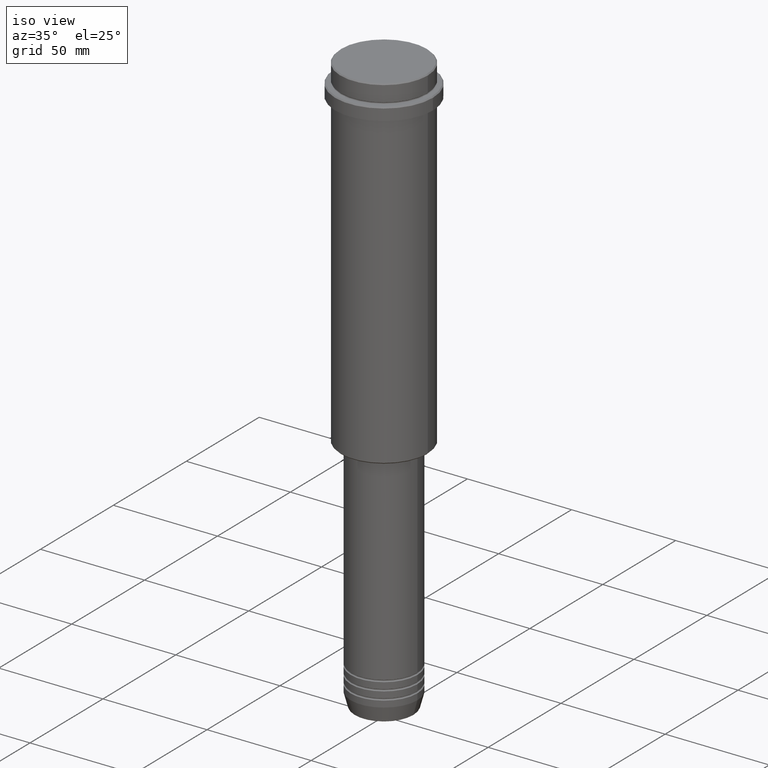
[diagram: clean part render]
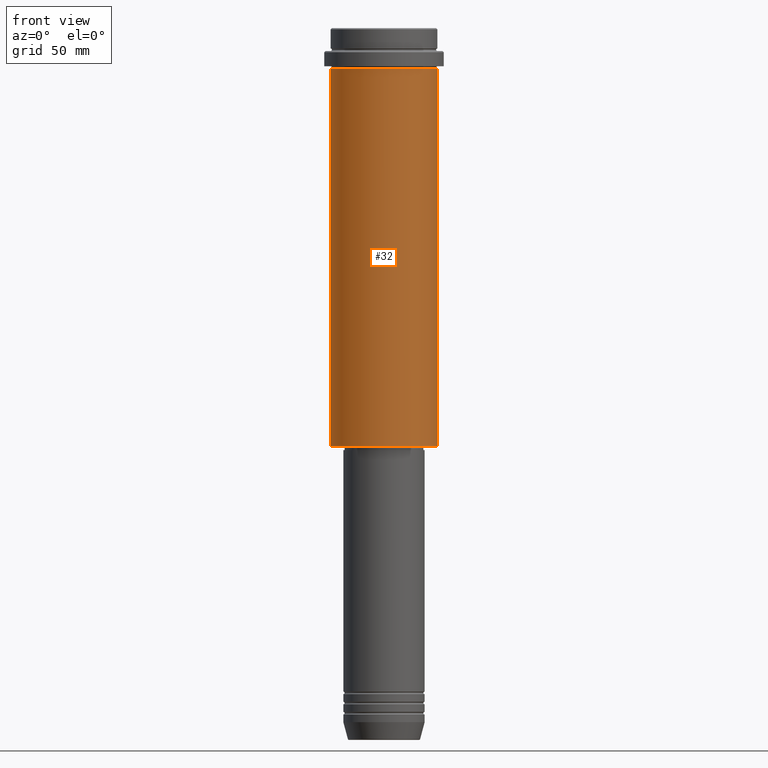
[diagram: tour spotlight — one face highlighted and labeled with its STEP entity id]
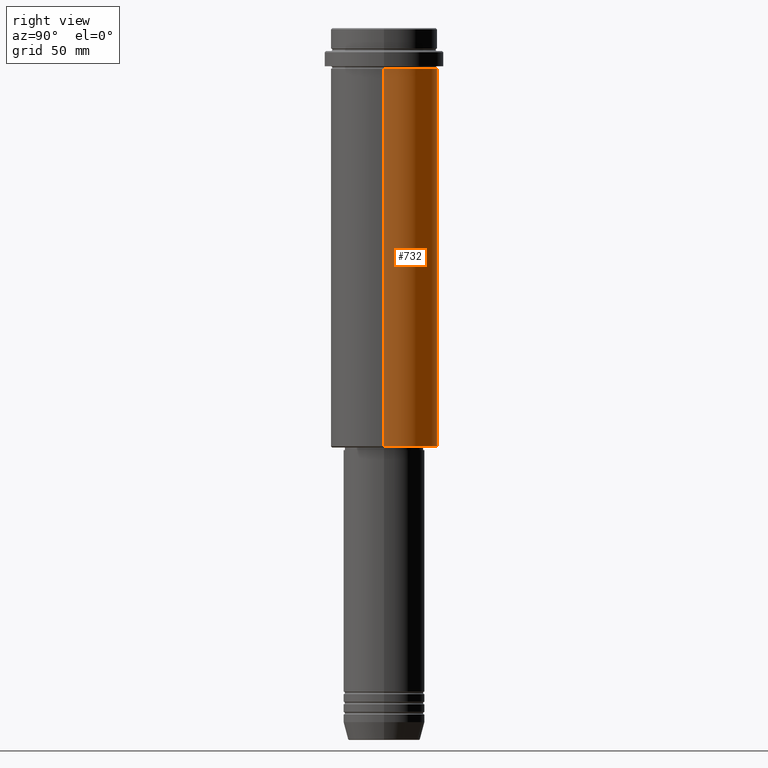
[diagram: tour spotlight — one face highlighted and labeled with its STEP entity id]
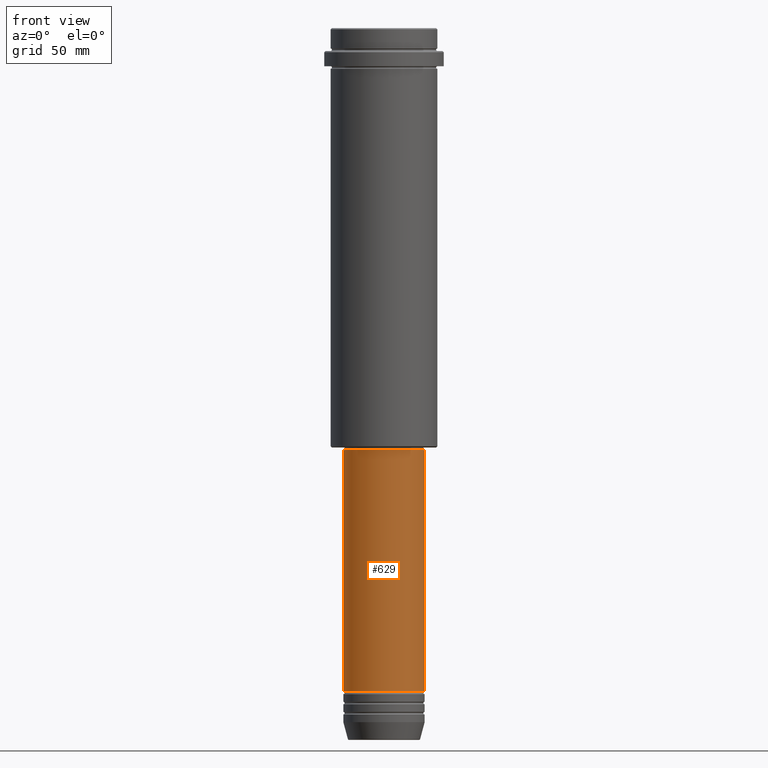
[diagram: tour spotlight — one face highlighted and labeled with its STEP entity id]
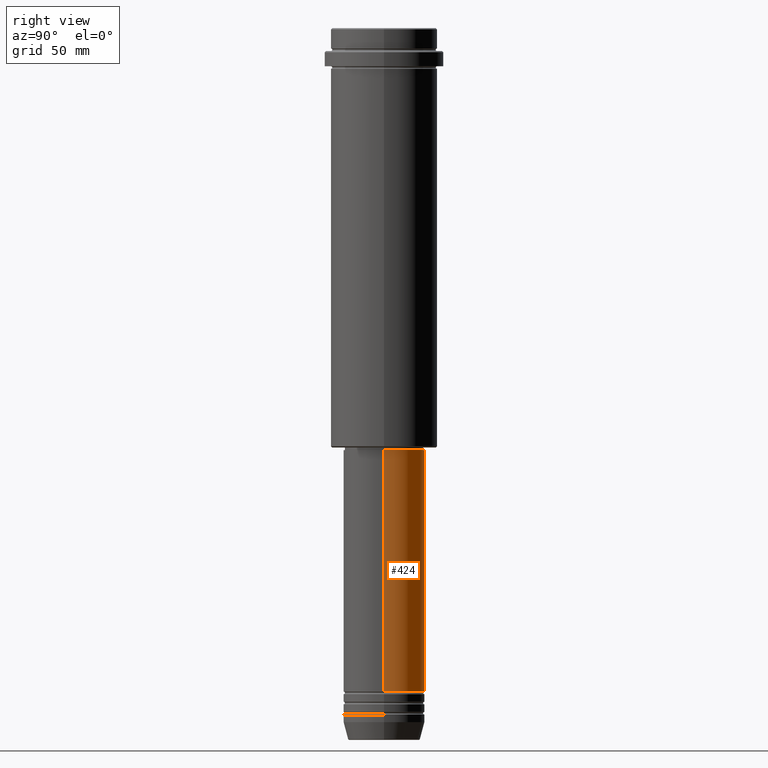
[diagram: tour spotlight — one face highlighted and labeled with its STEP entity id]
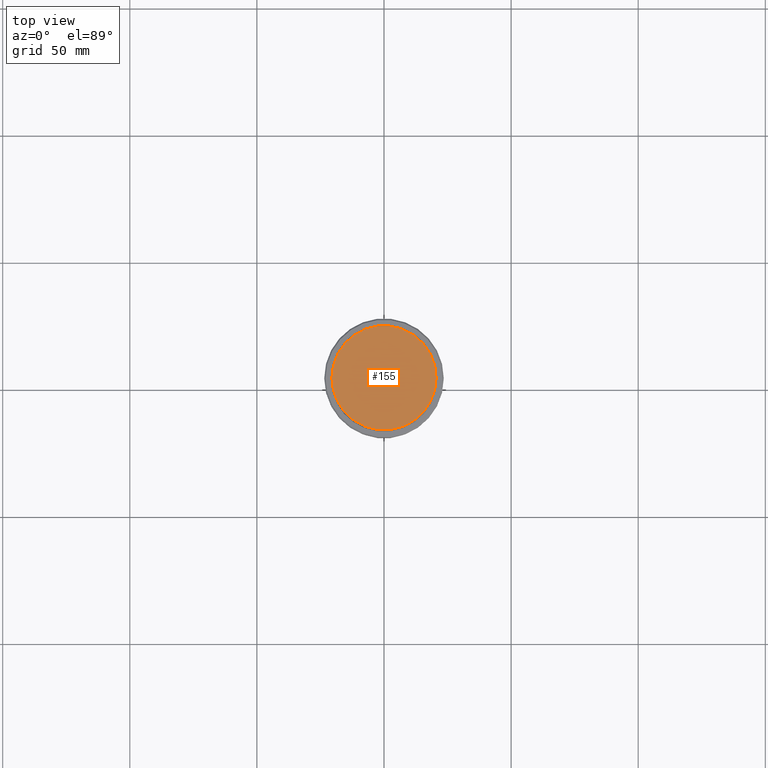
[diagram: tour spotlight — one face highlighted and labeled with its STEP entity id]
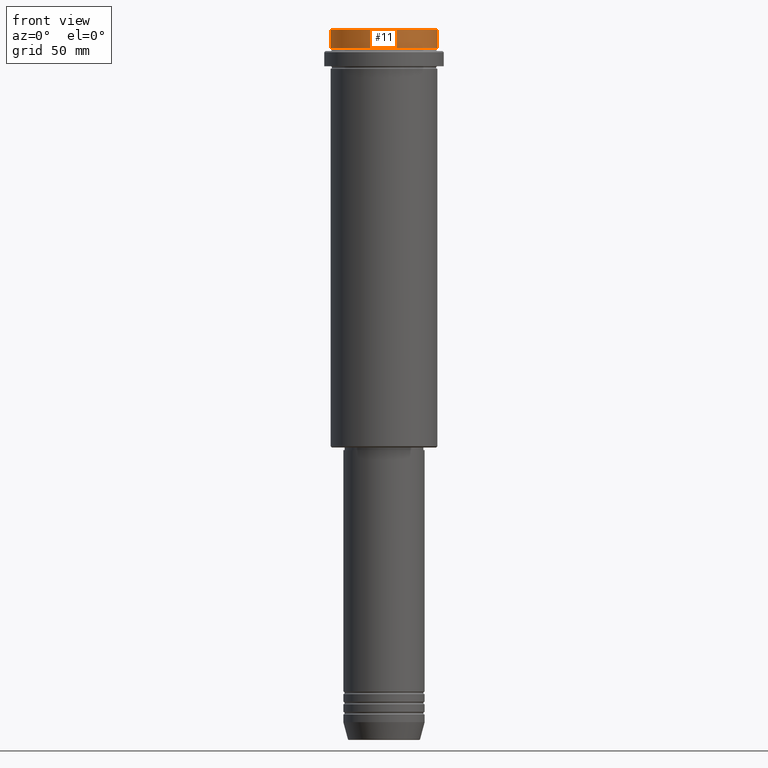
[diagram: tour spotlight — one face highlighted and labeled with its STEP entity id]
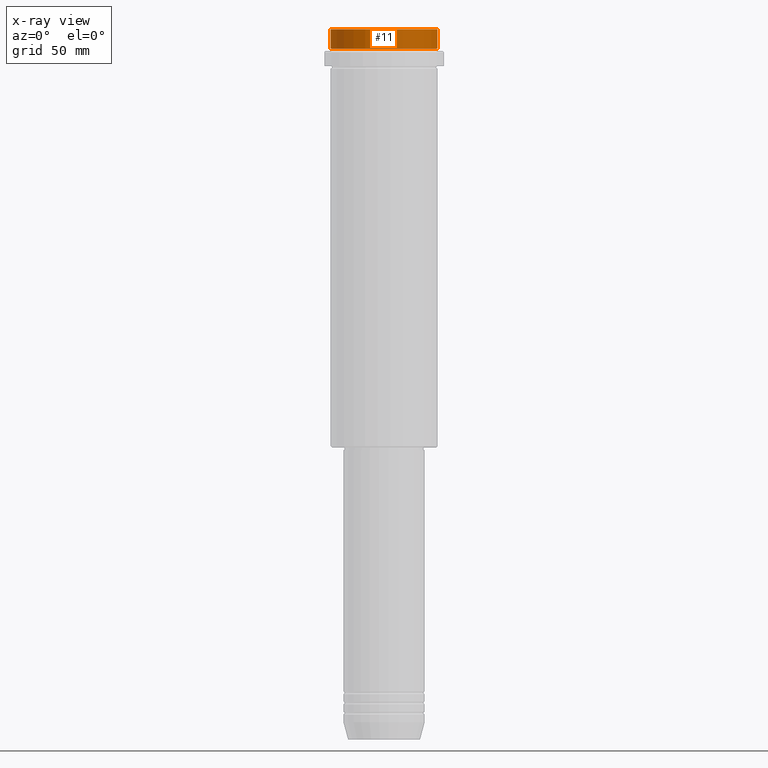
[diagram: x-ray of the same camera — body ghosted, this tour face saturated]
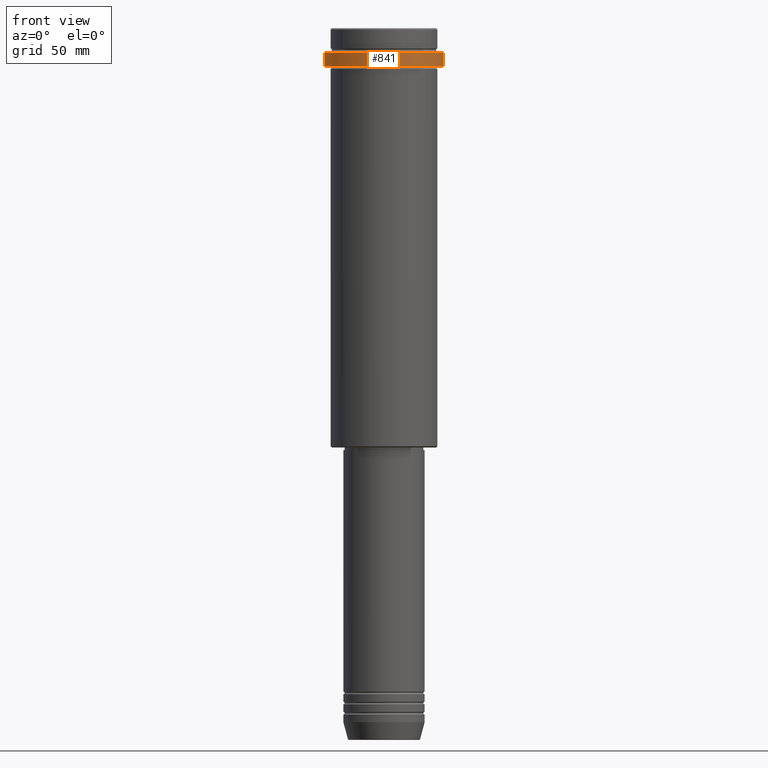
[diagram: tour spotlight — one face highlighted and labeled with its STEP entity id]
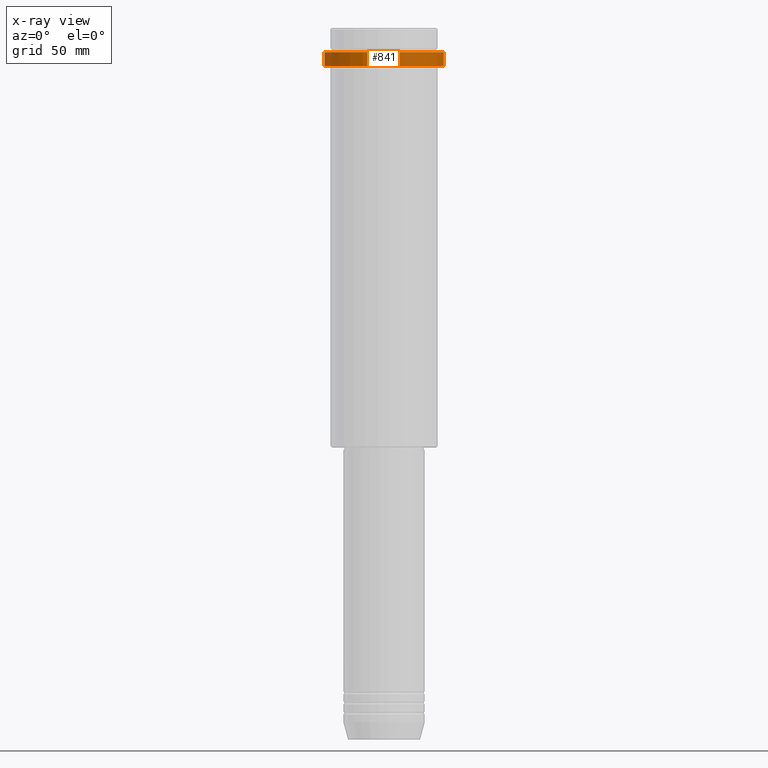
[diagram: x-ray of the same camera — body ghosted, this tour face saturated]
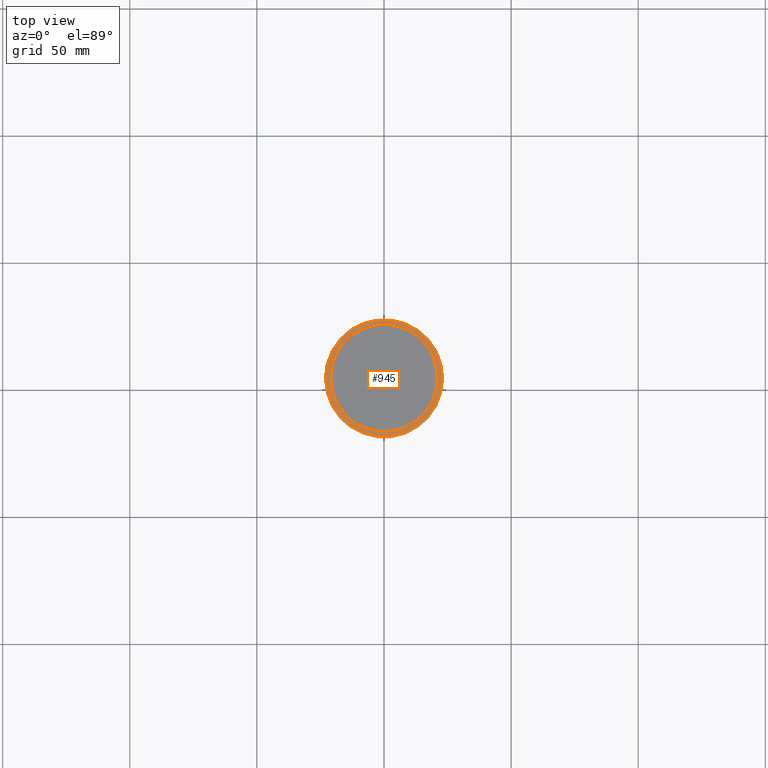
[diagram: tour spotlight — one face highlighted and labeled with its STEP entity id]
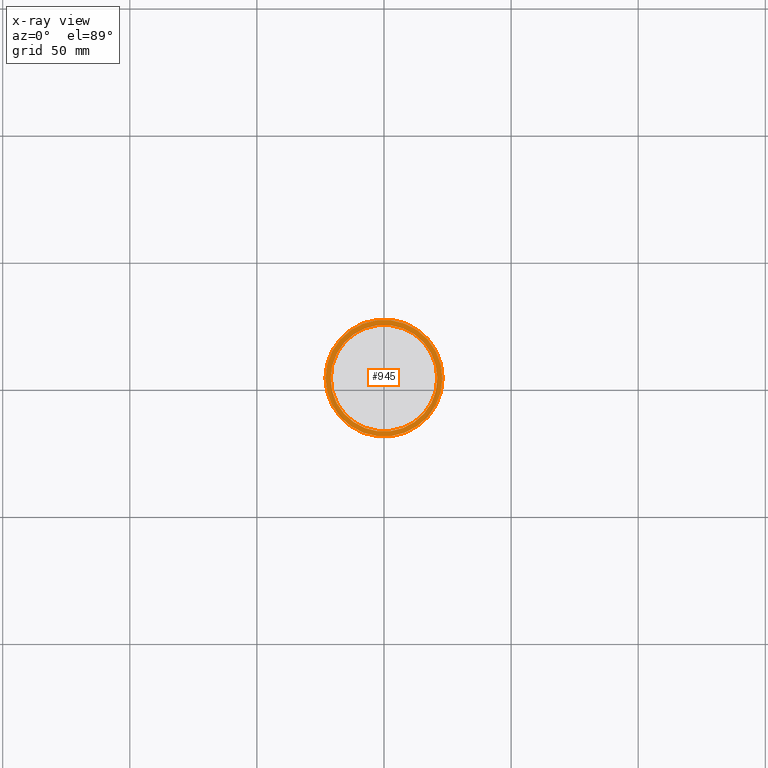
[diagram: x-ray of the same camera — body ghosted, this tour face saturated]
A machine part: a face-by-face anatomy tour. The part has 52 B-rep faces; the first image is the clean iso view, then the 8 largest visible faces are spotlighted one at a time (largest first), each with its STEP entity span.

Face 1 — front view, entity #32. In plain terms, the highlighted cylindrical surface (partial cylindrical patch) has radius 21 mm, axis along (-0, -0, 1).
Definition (entity closure, byte-faithful):
#2 = DIRECTION ( 'NONE',  ( -1.000000000000000000, 0.000000000000000000, 0.000000000000000000 ) ) ;
#26 = CARTESIAN_POINT ( 'NONE',  ( 0.000000000000000000, 0.000000000000000000, 0.000000000000000000 ) ) ;
#31 = DIRECTION ( 'NONE',  ( 1.000000000000000000, 0.000000000000000000, 0.000000000000000000 ) ) ;
#32 = ADVANCED_FACE ( 'NONE', ( #690 ), #372, .T. ) ;
#132 = VERTEX_POINT ( 'NONE', #459 ) ;
#152 = DIRECTION ( 'NONE',  ( -0.000000000000000000, -0.000000000000000000, 1.000000000000000000 ) ) ;
#175 = LINE ( 'NONE', #672, #1008 ) ;
#188 = CARTESIAN_POINT ( 'NONE',  ( 21.00000000000000000, 0.000000000000000000, -16.00000000000000355 ) ) ;
#222 = CARTESIAN_POINT ( 'NONE',  ( 0.000000000000000000, 0.000000000000000000, -164.5000000000000000 ) ) ;
#262 = ORIENTED_EDGE ( 'NONE', *, *, #522, .F. ) ;
#277 = CARTESIAN_POINT ( 'NONE',  ( -21.00000000000000000, 2.571758278209441661E-15, 0.000000000000000000 ) ) ;
#372 = CYLINDRICAL_SURFACE ( 'NONE', #958, 21.00000000000000000 ) ;
#390 = VERTEX_POINT ( 'NONE', #188 ) ;
#397 = ORIENTED_EDGE ( 'NONE', *, *, #550, .T. ) ;
#459 = CARTESIAN_POINT ( 'NONE',  ( -21.00000000000000000, 2.571758278209441661E-15, -16.00000000000000355 ) ) ;
#522 = EDGE_CURVE ( 'NONE', #860, #132, #1372, .T. ) ;
#534 = VECTOR ( 'NONE', #895, 1000.000000000000000 ) ;
#550 = EDGE_CURVE ( 'NONE', #750, #390, #175, .T. ) ;
#642 = CARTESIAN_POINT ( 'NONE',  ( 21.00000000000000000, 0.000000000000000000, -164.5000000000000000 ) ) ;
#672 = CARTESIAN_POINT ( 'NONE',  ( 21.00000000000000000, 0.000000000000000000, 0.000000000000000000 ) ) ;
#690 = FACE_OUTER_BOUND ( 'NONE', #1298, .T. ) ;
#712 = EDGE_CURVE ( 'NONE', #860, #750, #1167, .T. ) ;
#738 = DIRECTION ( 'NONE',  ( 1.000000000000000000, 0.000000000000000000, 0.000000000000000000 ) ) ;
#750 = VERTEX_POINT ( 'NONE', #642 ) ;
#789 = CARTESIAN_POINT ( 'NONE',  ( -21.00000000000000000, 2.571758278209441661E-15, -164.5000000000000000 ) ) ;
#860 = VERTEX_POINT ( 'NONE', #789 ) ;
#895 = DIRECTION ( 'NONE',  ( -0.000000000000000000, -0.000000000000000000, 1.000000000000000000 ) ) ;
#924 = AXIS2_PLACEMENT_3D ( 'NONE', #222, #970, #2 ) ;
#958 = AXIS2_PLACEMENT_3D ( 'NONE', #26, #1238, #738 ) ;
#970 = DIRECTION ( 'NONE',  ( -0.000000000000000000, -0.000000000000000000, 1.000000000000000000 ) ) ;
#1008 = VECTOR ( 'NONE', #1378, 1000.000000000000000 ) ;
#1054 = CIRCLE ( 'NONE', #1290, 21.00000000000000000 ) ;
#1118 = ORIENTED_EDGE ( 'NONE', *, *, #712, .T. ) ;
#1167 = CIRCLE ( 'NONE', #924, 21.00000000000000000 ) ;
#1179 = ORIENTED_EDGE ( 'NONE', *, *, #1370, .F. ) ;
#1203 = CARTESIAN_POINT ( 'NONE',  ( 0.000000000000000000, 0.000000000000000000, -16.00000000000000355 ) ) ;
#1238 = DIRECTION ( 'NONE',  ( -0.000000000000000000, -0.000000000000000000, 1.000000000000000000 ) ) ;
#1290 = AXIS2_PLACEMENT_3D ( 'NONE', #1203, #152, #31 ) ;
#1298 = EDGE_LOOP ( 'NONE', ( #262, #1118, #397, #1179 ) ) ;
#1370 = EDGE_CURVE ( 'NONE', #132, #390, #1054, .T. ) ;
#1372 = LINE ( 'NONE', #277, #534 ) ;
#1378 = DIRECTION ( 'NONE',  ( -0.000000000000000000, -0.000000000000000000, 1.000000000000000000 ) ) ;

Face 2 — right view, entity #732. In plain terms, the highlighted cylindrical surface (partial cylindrical patch) has radius 21 mm, axis along (-0, -0, 1).
Definition (entity closure, byte-faithful):
#86 = AXIS2_PLACEMENT_3D ( 'NONE', #866, #228, #1308 ) ;
#106 = DIRECTION ( 'NONE',  ( 1.000000000000000000, 0.000000000000000000, 0.000000000000000000 ) ) ;
#124 = CARTESIAN_POINT ( 'NONE',  ( 0.000000000000000000, 0.000000000000000000, -16.00000000000000355 ) ) ;
#132 = VERTEX_POINT ( 'NONE', #459 ) ;
#175 = LINE ( 'NONE', #672, #1008 ) ;
#188 = CARTESIAN_POINT ( 'NONE',  ( 21.00000000000000000, 0.000000000000000000, -16.00000000000000355 ) ) ;
#204 = EDGE_LOOP ( 'NONE', ( #1373, #667, #1055, #435 ) ) ;
#213 = EDGE_CURVE ( 'NONE', #750, #860, #1311, .T. ) ;
#228 = DIRECTION ( 'NONE',  ( -0.000000000000000000, -0.000000000000000000, 1.000000000000000000 ) ) ;
#232 = EDGE_CURVE ( 'NONE', #390, #132, #264, .T. ) ;
#252 = DIRECTION ( 'NONE',  ( 1.000000000000000000, 0.000000000000000000, 0.000000000000000000 ) ) ;
#264 = CIRCLE ( 'NONE', #1048, 21.00000000000000000 ) ;
#277 = CARTESIAN_POINT ( 'NONE',  ( -21.00000000000000000, 2.571758278209441661E-15, 0.000000000000000000 ) ) ;
#390 = VERTEX_POINT ( 'NONE', #188 ) ;
#435 = ORIENTED_EDGE ( 'NONE', *, *, #550, .F. ) ;
#459 = CARTESIAN_POINT ( 'NONE',  ( -21.00000000000000000, 2.571758278209441661E-15, -16.00000000000000355 ) ) ;
#522 = EDGE_CURVE ( 'NONE', #860, #132, #1372, .T. ) ;
#534 = VECTOR ( 'NONE', #895, 1000.000000000000000 ) ;
#550 = EDGE_CURVE ( 'NONE', #750, #390, #175, .T. ) ;
#628 = FACE_OUTER_BOUND ( 'NONE', #204, .T. ) ;
#642 = CARTESIAN_POINT ( 'NONE',  ( 21.00000000000000000, 0.000000000000000000, -164.5000000000000000 ) ) ;
#667 = ORIENTED_EDGE ( 'NONE', *, *, #522, .T. ) ;
#672 = CARTESIAN_POINT ( 'NONE',  ( 21.00000000000000000, 0.000000000000000000, 0.000000000000000000 ) ) ;
#732 = ADVANCED_FACE ( 'NONE', ( #628 ), #753, .T. ) ;
#743 = AXIS2_PLACEMENT_3D ( 'NONE', #1180, #1056, #106 ) ;
#750 = VERTEX_POINT ( 'NONE', #642 ) ;
#753 = CYLINDRICAL_SURFACE ( 'NONE', #743, 21.00000000000000000 ) ;
#789 = CARTESIAN_POINT ( 'NONE',  ( -21.00000000000000000, 2.571758278209441661E-15, -164.5000000000000000 ) ) ;
#860 = VERTEX_POINT ( 'NONE', #789 ) ;
#866 = CARTESIAN_POINT ( 'NONE',  ( 0.000000000000000000, 0.000000000000000000, -164.5000000000000000 ) ) ;
#895 = DIRECTION ( 'NONE',  ( -0.000000000000000000, -0.000000000000000000, 1.000000000000000000 ) ) ;
#1008 = VECTOR ( 'NONE', #1378, 1000.000000000000000 ) ;
#1048 = AXIS2_PLACEMENT_3D ( 'NONE', #124, #1300, #252 ) ;
#1055 = ORIENTED_EDGE ( 'NONE', *, *, #232, .F. ) ;
#1056 = DIRECTION ( 'NONE',  ( -0.000000000000000000, -0.000000000000000000, 1.000000000000000000 ) ) ;
#1180 = CARTESIAN_POINT ( 'NONE',  ( 0.000000000000000000, 0.000000000000000000, 0.000000000000000000 ) ) ;
#1300 = DIRECTION ( 'NONE',  ( -0.000000000000000000, -0.000000000000000000, 1.000000000000000000 ) ) ;
#1308 = DIRECTION ( 'NONE',  ( -1.000000000000000000, 0.000000000000000000, 0.000000000000000000 ) ) ;
#1311 = CIRCLE ( 'NONE', #86, 21.00000000000000000 ) ;
#1372 = LINE ( 'NONE', #277, #534 ) ;
#1373 = ORIENTED_EDGE ( 'NONE', *, *, #213, .T. ) ;
#1378 = DIRECTION ( 'NONE',  ( -0.000000000000000000, -0.000000000000000000, 1.000000000000000000 ) ) ;

Face 3 — front view, entity #629. In plain terms, the highlighted cylindrical surface (partial cylindrical patch) has radius 16 mm, axis along (-0, -0, 1).
Definition (entity closure, byte-faithful):
#8 = CARTESIAN_POINT ( 'NONE',  ( 16.00000000000000000, 0.000000000000000000, -260.9999999999998863 ) ) ;
#33 = CYLINDRICAL_SURFACE ( 'NONE', #219, 16.00000000000000000 ) ;
#76 = DIRECTION ( 'NONE',  ( 1.000000000000000000, 0.000000000000000000, 0.000000000000000000 ) ) ;
#93 = ORIENTED_EDGE ( 'NONE', *, *, #278, .F. ) ;
#168 = EDGE_LOOP ( 'NONE', ( #93, #1066, #1384, #887 ) ) ;
#181 = EDGE_CURVE ( 'NONE', #1186, #947, #555, .T. ) ;
#212 = DIRECTION ( 'NONE',  ( -0.000000000000000000, -0.000000000000000000, 1.000000000000000000 ) ) ;
#219 = AXIS2_PLACEMENT_3D ( 'NONE', #990, #1317, #1083 ) ;
#278 = EDGE_CURVE ( 'NONE', #583, #1186, #1279, .T. ) ;
#315 = VECTOR ( 'NONE', #637, 1000.000000000000000 ) ;
#323 = CARTESIAN_POINT ( 'NONE',  ( 0.000000000000000000, 0.000000000000000000, -166.0000000000000853 ) ) ;
#440 = AXIS2_PLACEMENT_3D ( 'NONE', #795, #1222, #908 ) ;
#453 = CARTESIAN_POINT ( 'NONE',  ( 16.00000000000000355, 0.000000000000000000, -166.0000000000000853 ) ) ;
#555 = CIRCLE ( 'NONE', #1069, 16.00000000000000355 ) ;
#583 = VERTEX_POINT ( 'NONE', #1027 ) ;
#629 = ADVANCED_FACE ( 'NONE', ( #1199 ), #33, .T. ) ;
#637 = DIRECTION ( 'NONE',  ( -0.000000000000000000, -0.000000000000000000, 1.000000000000000000 ) ) ;
#644 = EDGE_CURVE ( 'NONE', #1248, #947, #1220, .T. ) ;
#775 = CARTESIAN_POINT ( 'NONE',  ( 16.00000000000000000, 0.000000000000000000, 0.000000000000000000 ) ) ;
#795 = CARTESIAN_POINT ( 'NONE',  ( 0.000000000000000000, 0.000000000000000000, -260.9999999999998863 ) ) ;
#867 = CARTESIAN_POINT ( 'NONE',  ( -16.00000000000000355, 1.959434878635765526E-15, -166.0000000000000853 ) ) ;
#887 = ORIENTED_EDGE ( 'NONE', *, *, #181, .F. ) ;
#908 = DIRECTION ( 'NONE',  ( 1.000000000000000000, 0.000000000000000000, 0.000000000000000000 ) ) ;
#936 = EDGE_CURVE ( 'NONE', #583, #1248, #1365, .T. ) ;
#939 = VECTOR ( 'NONE', #1112, 1000.000000000000000 ) ;
#947 = VERTEX_POINT ( 'NONE', #453 ) ;
#990 = CARTESIAN_POINT ( 'NONE',  ( 0.000000000000000000, 0.000000000000000000, 0.000000000000000000 ) ) ;
#1027 = CARTESIAN_POINT ( 'NONE',  ( -16.00000000000000000, 1.959434878635765131E-15, -260.9999999999998863 ) ) ;
#1066 = ORIENTED_EDGE ( 'NONE', *, *, #936, .T. ) ;
#1069 = AXIS2_PLACEMENT_3D ( 'NONE', #323, #212, #76 ) ;
#1083 = DIRECTION ( 'NONE',  ( 1.000000000000000000, 0.000000000000000000, 0.000000000000000000 ) ) ;
#1112 = DIRECTION ( 'NONE',  ( -0.000000000000000000, -0.000000000000000000, 1.000000000000000000 ) ) ;
#1186 = VERTEX_POINT ( 'NONE', #867 ) ;
#1199 = FACE_OUTER_BOUND ( 'NONE', #168, .T. ) ;
#1220 = LINE ( 'NONE', #775, #939 ) ;
#1222 = DIRECTION ( 'NONE',  ( -0.000000000000000000, -0.000000000000000000, 1.000000000000000000 ) ) ;
#1248 = VERTEX_POINT ( 'NONE', #8 ) ;
#1279 = LINE ( 'NONE', #1400, #315 ) ;
#1317 = DIRECTION ( 'NONE',  ( -0.000000000000000000, -0.000000000000000000, 1.000000000000000000 ) ) ;
#1365 = CIRCLE ( 'NONE', #440, 16.00000000000000000 ) ;
#1384 = ORIENTED_EDGE ( 'NONE', *, *, #644, .T. ) ;
#1400 = CARTESIAN_POINT ( 'NONE',  ( -16.00000000000000000, 1.959434878635765131E-15, 0.000000000000000000 ) ) ;

Face 4 — right view, entity #424. In plain terms, the highlighted cylindrical surface (partial cylindrical patch) has radius 16 mm, axis along (-0, -0, 1).
Definition (entity closure, byte-faithful):
#8 = CARTESIAN_POINT ( 'NONE',  ( 16.00000000000000000, 0.000000000000000000, -260.9999999999998863 ) ) ;
#244 = DIRECTION ( 'NONE',  ( 1.000000000000000000, 0.000000000000000000, 0.000000000000000000 ) ) ;
#278 = EDGE_CURVE ( 'NONE', #583, #1186, #1279, .T. ) ;
#315 = VECTOR ( 'NONE', #637, 1000.000000000000000 ) ;
#381 = CIRCLE ( 'NONE', #1076, 16.00000000000000355 ) ;
#395 = DIRECTION ( 'NONE',  ( 1.000000000000000000, 0.000000000000000000, 0.000000000000000000 ) ) ;
#404 = DIRECTION ( 'NONE',  ( 1.000000000000000000, 0.000000000000000000, 0.000000000000000000 ) ) ;
#419 = CIRCLE ( 'NONE', #880, 16.00000000000000000 ) ;
#424 = ADVANCED_FACE ( 'NONE', ( #715 ), #611, .T. ) ;
#441 = EDGE_LOOP ( 'NONE', ( #1399, #878, #1288, #1260 ) ) ;
#453 = CARTESIAN_POINT ( 'NONE',  ( 16.00000000000000355, 0.000000000000000000, -166.0000000000000853 ) ) ;
#526 = DIRECTION ( 'NONE',  ( -0.000000000000000000, -0.000000000000000000, 1.000000000000000000 ) ) ;
#583 = VERTEX_POINT ( 'NONE', #1027 ) ;
#611 = CYLINDRICAL_SURFACE ( 'NONE', #1314, 16.00000000000000000 ) ;
#637 = DIRECTION ( 'NONE',  ( -0.000000000000000000, -0.000000000000000000, 1.000000000000000000 ) ) ;
#644 = EDGE_CURVE ( 'NONE', #1248, #947, #1220, .T. ) ;
#715 = FACE_OUTER_BOUND ( 'NONE', #441, .T. ) ;
#762 = DIRECTION ( 'NONE',  ( -0.000000000000000000, -0.000000000000000000, 1.000000000000000000 ) ) ;
#775 = CARTESIAN_POINT ( 'NONE',  ( 16.00000000000000000, 0.000000000000000000, 0.000000000000000000 ) ) ;
#811 = CARTESIAN_POINT ( 'NONE',  ( 0.000000000000000000, 0.000000000000000000, -166.0000000000000853 ) ) ;
#867 = CARTESIAN_POINT ( 'NONE',  ( -16.00000000000000355, 1.959434878635765526E-15, -166.0000000000000853 ) ) ;
#878 = ORIENTED_EDGE ( 'NONE', *, *, #278, .T. ) ;
#880 = AXIS2_PLACEMENT_3D ( 'NONE', #1210, #762, #244 ) ;
#933 = DIRECTION ( 'NONE',  ( -0.000000000000000000, -0.000000000000000000, 1.000000000000000000 ) ) ;
#939 = VECTOR ( 'NONE', #1112, 1000.000000000000000 ) ;
#947 = VERTEX_POINT ( 'NONE', #453 ) ;
#985 = EDGE_CURVE ( 'NONE', #1248, #583, #419, .T. ) ;
#1027 = CARTESIAN_POINT ( 'NONE',  ( -16.00000000000000000, 1.959434878635765131E-15, -260.9999999999998863 ) ) ;
#1039 = CARTESIAN_POINT ( 'NONE',  ( 0.000000000000000000, 0.000000000000000000, 0.000000000000000000 ) ) ;
#1076 = AXIS2_PLACEMENT_3D ( 'NONE', #811, #526, #404 ) ;
#1099 = EDGE_CURVE ( 'NONE', #947, #1186, #381, .T. ) ;
#1112 = DIRECTION ( 'NONE',  ( -0.000000000000000000, -0.000000000000000000, 1.000000000000000000 ) ) ;
#1186 = VERTEX_POINT ( 'NONE', #867 ) ;
#1210 = CARTESIAN_POINT ( 'NONE',  ( 0.000000000000000000, 0.000000000000000000, -260.9999999999998863 ) ) ;
#1220 = LINE ( 'NONE', #775, #939 ) ;
#1248 = VERTEX_POINT ( 'NONE', #8 ) ;
#1260 = ORIENTED_EDGE ( 'NONE', *, *, #644, .F. ) ;
#1279 = LINE ( 'NONE', #1400, #315 ) ;
#1288 = ORIENTED_EDGE ( 'NONE', *, *, #1099, .F. ) ;
#1314 = AXIS2_PLACEMENT_3D ( 'NONE', #1039, #933, #395 ) ;
#1399 = ORIENTED_EDGE ( 'NONE', *, *, #985, .T. ) ;
#1400 = CARTESIAN_POINT ( 'NONE',  ( -16.00000000000000000, 1.959434878635765131E-15, 0.000000000000000000 ) ) ;

Face 5 — top view, entity #155. In plain terms, the highlighted planar face has unit normal (0, -0, 1).
Definition (entity closure, byte-faithful):
#6 = DIRECTION ( 'NONE',  ( -0.000000000000000000, -0.000000000000000000, 1.000000000000000000 ) ) ;
#42 = VERTEX_POINT ( 'NONE', #1270 ) ;
#155 = ADVANCED_FACE ( 'NONE', ( #577 ), #305, .T. ) ;
#273 = CARTESIAN_POINT ( 'NONE',  ( 0.000000000000000000, 0.000000000000000000, 0.000000000000000000 ) ) ;
#295 = DIRECTION ( 'NONE',  ( 1.000000000000000000, 0.000000000000000000, 0.000000000000000000 ) ) ;
#305 = PLANE ( 'NONE',  #578 ) ;
#335 = AXIS2_PLACEMENT_3D ( 'NONE', #545, #6, #635 ) ;
#445 = CARTESIAN_POINT ( 'NONE',  ( 20.50000000000004619, 2.541142108230760635E-15, 0.000000000000000000 ) ) ;
#502 = ORIENTED_EDGE ( 'NONE', *, *, #897, .T. ) ;
#545 = CARTESIAN_POINT ( 'NONE',  ( 0.000000000000000000, 0.000000000000000000, 0.000000000000000000 ) ) ;
#577 = FACE_OUTER_BOUND ( 'NONE', #1160, .T. ) ;
#578 = AXIS2_PLACEMENT_3D ( 'NONE', #839, #1277, #295 ) ;
#635 = DIRECTION ( 'NONE',  ( 1.000000000000000000, 0.000000000000000000, 0.000000000000000000 ) ) ;
#716 = CIRCLE ( 'NONE', #335, 20.50000000000004619 ) ;
#752 = EDGE_CURVE ( 'NONE', #979, #42, #716, .T. ) ;
#774 = ORIENTED_EDGE ( 'NONE', *, *, #752, .T. ) ;
#839 = CARTESIAN_POINT ( 'NONE',  ( 0.000000000000000000, 0.000000000000000000, 0.000000000000000000 ) ) ;
#897 = EDGE_CURVE ( 'NONE', #42, #979, #1123, .T. ) ;
#979 = VERTEX_POINT ( 'NONE', #445 ) ;
#983 = AXIS2_PLACEMENT_3D ( 'NONE', #273, #1035, #1272 ) ;
#1035 = DIRECTION ( 'NONE',  ( -0.000000000000000000, -0.000000000000000000, 1.000000000000000000 ) ) ;
#1123 = CIRCLE ( 'NONE', #983, 20.50000000000004619 ) ;
#1160 = EDGE_LOOP ( 'NONE', ( #502, #774 ) ) ;
#1270 = CARTESIAN_POINT ( 'NONE',  ( -20.50000000000004619, 0.000000000000000000, 0.000000000000000000 ) ) ;
#1272 = DIRECTION ( 'NONE',  ( 1.000000000000000000, 0.000000000000000000, 0.000000000000000000 ) ) ;
#1277 = DIRECTION ( 'NONE',  ( 0.000000000000000000, -0.000000000000000000, 1.000000000000000000 ) ) ;

Face 6 — front view, entity #11. An x-ray twin of the same camera follows (body ghosted, this face saturated) — the face is partly hidden behind the body. In plain terms, the highlighted cylindrical surface (partial cylindrical patch) has radius 21 mm, axis along (-0, -0, 1).
Definition (entity closure, byte-faithful):
#7 = EDGE_CURVE ( 'NONE', #1022, #35, #1085, .T. ) ;
#11 = ADVANCED_FACE ( 'NONE', ( #120 ), #549, .T. ) ;
#15 = CIRCLE ( 'NONE', #714, 21.00000000000000000 ) ;
#35 = VERTEX_POINT ( 'NONE', #604 ) ;
#72 = DIRECTION ( 'NONE',  ( 1.000000000000000000, 0.000000000000000000, 0.000000000000000000 ) ) ;
#94 = CARTESIAN_POINT ( 'NONE',  ( 0.000000000000000000, 0.000000000000000000, -0.4999999999999831246 ) ) ;
#120 = FACE_OUTER_BOUND ( 'NONE', #1138, .T. ) ;
#173 = CARTESIAN_POINT ( 'NONE',  ( 0.000000000000000000, 0.000000000000000000, -7.999999999999998224 ) ) ;
#217 = AXIS2_PLACEMENT_3D ( 'NONE', #563, #914, #786 ) ;
#338 = AXIS2_PLACEMENT_3D ( 'NONE', #94, #519, #614 ) ;
#388 = LINE ( 'NONE', #1368, #1144 ) ;
#402 = EDGE_CURVE ( 'NONE', #934, #1416, #388, .T. ) ;
#413 = EDGE_CURVE ( 'NONE', #934, #1022, #15, .T. ) ;
#490 = CARTESIAN_POINT ( 'NONE',  ( 21.00000000000000000, 0.000000000000000000, -7.999999999999998224 ) ) ;
#519 = DIRECTION ( 'NONE',  ( 0.000000000000000000, 0.000000000000000000, -1.000000000000000000 ) ) ;
#548 = ORIENTED_EDGE ( 'NONE', *, *, #402, .F. ) ;
#549 = CYLINDRICAL_SURFACE ( 'NONE', #217, 21.00000000000000000 ) ;
#563 = CARTESIAN_POINT ( 'NONE',  ( 0.000000000000000000, 0.000000000000000000, 0.000000000000000000 ) ) ;
#602 = DIRECTION ( 'NONE',  ( -0.000000000000000000, -0.000000000000000000, 1.000000000000000000 ) ) ;
#604 = CARTESIAN_POINT ( 'NONE',  ( 21.00000000000000000, 0.000000000000000000, -0.4999999999999831246 ) ) ;
#614 = DIRECTION ( 'NONE',  ( 1.000000000000000000, 0.000000000000000000, 0.000000000000000000 ) ) ;
#668 = VECTOR ( 'NONE', #1415, 1000.000000000000000 ) ;
#706 = DIRECTION ( 'NONE',  ( -0.000000000000000000, -0.000000000000000000, 1.000000000000000000 ) ) ;
#714 = AXIS2_PLACEMENT_3D ( 'NONE', #173, #602, #72 ) ;
#729 = ORIENTED_EDGE ( 'NONE', *, *, #7, .T. ) ;
#786 = DIRECTION ( 'NONE',  ( 1.000000000000000000, 0.000000000000000000, 0.000000000000000000 ) ) ;
#831 = ORIENTED_EDGE ( 'NONE', *, *, #413, .T. ) ;
#901 = EDGE_CURVE ( 'NONE', #35, #1416, #1343, .T. ) ;
#914 = DIRECTION ( 'NONE',  ( -0.000000000000000000, -0.000000000000000000, 1.000000000000000000 ) ) ;
#934 = VERTEX_POINT ( 'NONE', #1107 ) ;
#987 = CARTESIAN_POINT ( 'NONE',  ( -21.00000000000000000, 2.571758278209441661E-15, -0.4999999999999831246 ) ) ;
#1022 = VERTEX_POINT ( 'NONE', #490 ) ;
#1085 = LINE ( 'NONE', #1207, #668 ) ;
#1107 = CARTESIAN_POINT ( 'NONE',  ( -21.00000000000000000, 2.571758278209441661E-15, -7.999999999999998224 ) ) ;
#1138 = EDGE_LOOP ( 'NONE', ( #548, #831, #729, #1276 ) ) ;
#1144 = VECTOR ( 'NONE', #706, 1000.000000000000000 ) ;
#1207 = CARTESIAN_POINT ( 'NONE',  ( 21.00000000000000000, 0.000000000000000000, 0.000000000000000000 ) ) ;
#1276 = ORIENTED_EDGE ( 'NONE', *, *, #901, .T. ) ;
#1343 = CIRCLE ( 'NONE', #338, 21.00000000000000000 ) ;
#1368 = CARTESIAN_POINT ( 'NONE',  ( -21.00000000000000000, 2.571758278209441661E-15, 0.000000000000000000 ) ) ;
#1415 = DIRECTION ( 'NONE',  ( -0.000000000000000000, -0.000000000000000000, 1.000000000000000000 ) ) ;
#1416 = VERTEX_POINT ( 'NONE', #987 ) ;

Face 7 — front view, entity #841. An x-ray twin of the same camera follows (body ghosted, this face saturated) — the face is partly hidden behind the body. In plain terms, the highlighted cylindrical surface (partial cylindrical patch) has radius 23.5 mm, axis along (-0, -0, 1).
Definition (entity closure, byte-faithful):
#18 = VECTOR ( 'NONE', #56, 1000.000000000000000 ) ;
#29 = FACE_OUTER_BOUND ( 'NONE', #1377, .T. ) ;
#56 = DIRECTION ( 'NONE',  ( -0.000000000000000000, -0.000000000000000000, 1.000000000000000000 ) ) ;
#66 = CARTESIAN_POINT ( 'NONE',  ( 23.50000000000000000, 0.000000000000000000, -9.499999999999971578 ) ) ;
#80 = VERTEX_POINT ( 'NONE', #711 ) ;
#198 = VERTEX_POINT ( 'NONE', #616 ) ;
#231 = DIRECTION ( 'NONE',  ( -0.000000000000000000, -0.000000000000000000, 1.000000000000000000 ) ) ;
#247 = VERTEX_POINT ( 'NONE', #1068 ) ;
#301 = CARTESIAN_POINT ( 'NONE',  ( 0.000000000000000000, 0.000000000000000000, -9.499999999999971578 ) ) ;
#312 = ORIENTED_EDGE ( 'NONE', *, *, #431, .T. ) ;
#336 = DIRECTION ( 'NONE',  ( 1.000000000000000000, 0.000000000000000000, 0.000000000000000000 ) ) ;
#369 = DIRECTION ( 'NONE',  ( 1.000000000000000000, 0.000000000000000000, 0.000000000000000000 ) ) ;
#374 = CYLINDRICAL_SURFACE ( 'NONE', #418, 23.50000000000000000 ) ;
#378 = CIRCLE ( 'NONE', #437, 23.50000000000000000 ) ;
#418 = AXIS2_PLACEMENT_3D ( 'NONE', #1344, #912, #369 ) ;
#431 = EDGE_CURVE ( 'NONE', #972, #80, #378, .T. ) ;
#437 = AXIS2_PLACEMENT_3D ( 'NONE', #301, #726, #619 ) ;
#505 = LINE ( 'NONE', #593, #18 ) ;
#517 = CARTESIAN_POINT ( 'NONE',  ( 0.000000000000000000, 0.000000000000000000, -15.00000000000000000 ) ) ;
#523 = DIRECTION ( 'NONE',  ( -0.000000000000000000, -0.000000000000000000, 1.000000000000000000 ) ) ;
#593 = CARTESIAN_POINT ( 'NONE',  ( -23.50000000000000000, 2.877919977996280320E-15, 0.000000000000000000 ) ) ;
#616 = CARTESIAN_POINT ( 'NONE',  ( -23.50000000000000711, 2.877919977996281109E-15, -15.00000000000000000 ) ) ;
#619 = DIRECTION ( 'NONE',  ( 1.000000000000000000, 0.000000000000000000, 0.000000000000000000 ) ) ;
#630 = VECTOR ( 'NONE', #231, 1000.000000000000000 ) ;
#707 = ORIENTED_EDGE ( 'NONE', *, *, #925, .T. ) ;
#711 = CARTESIAN_POINT ( 'NONE',  ( -23.50000000000000000, 2.877919977996280320E-15, -9.499999999999971578 ) ) ;
#726 = DIRECTION ( 'NONE',  ( 0.000000000000000000, 0.000000000000000000, -1.000000000000000000 ) ) ;
#841 = ADVANCED_FACE ( 'NONE', ( #29 ), #374, .T. ) ;
#861 = CARTESIAN_POINT ( 'NONE',  ( 23.50000000000000000, 0.000000000000000000, 0.000000000000000000 ) ) ;
#912 = DIRECTION ( 'NONE',  ( -0.000000000000000000, -0.000000000000000000, 1.000000000000000000 ) ) ;
#925 = EDGE_CURVE ( 'NONE', #247, #972, #963, .T. ) ;
#963 = LINE ( 'NONE', #861, #630 ) ;
#972 = VERTEX_POINT ( 'NONE', #66 ) ;
#1040 = EDGE_CURVE ( 'NONE', #198, #80, #505, .T. ) ;
#1068 = CARTESIAN_POINT ( 'NONE',  ( 23.50000000000000355, 0.000000000000000000, -15.00000000000000000 ) ) ;
#1104 = EDGE_CURVE ( 'NONE', #198, #247, #1169, .T. ) ;
#1168 = ORIENTED_EDGE ( 'NONE', *, *, #1040, .F. ) ;
#1169 = CIRCLE ( 'NONE', #1218, 23.50000000000000355 ) ;
#1218 = AXIS2_PLACEMENT_3D ( 'NONE', #517, #523, #336 ) ;
#1344 = CARTESIAN_POINT ( 'NONE',  ( 0.000000000000000000, 0.000000000000000000, 0.000000000000000000 ) ) ;
#1377 = EDGE_LOOP ( 'NONE', ( #1168, #1395, #707, #312 ) ) ;
#1395 = ORIENTED_EDGE ( 'NONE', *, *, #1104, .T. ) ;

Face 8 — top view, entity #945. An x-ray twin of the same camera follows (body ghosted, this face saturated) — the face is partly hidden behind the body. In plain terms, the highlighted planar face has unit normal (0, -0, 1).
Definition (entity closure, byte-faithful):
#25 = CARTESIAN_POINT ( 'NONE',  ( 0.000000000000000000, 0.000000000000000000, -9.000000000000000000 ) ) ;
#51 = CARTESIAN_POINT ( 'NONE',  ( -20.99999999999999289, 2.571758278209440872E-15, -9.000000000000000000 ) ) ;
#138 = DIRECTION ( 'NONE',  ( 1.000000000000000000, 0.000000000000000000, 0.000000000000000000 ) ) ;
#153 = AXIS2_PLACEMENT_3D ( 'NONE', #1274, #1154, #730 ) ;
#197 = EDGE_CURVE ( 'NONE', #414, #1047, #765, .T. ) ;
#200 = AXIS2_PLACEMENT_3D ( 'NONE', #847, #1064, #320 ) ;
#261 = FACE_BOUND ( 'NONE', #1406, .T. ) ;
#270 = AXIS2_PLACEMENT_3D ( 'NONE', #1323, #1204, #1092 ) ;
#318 = CIRCLE ( 'NONE', #270, 20.99999999999999289 ) ;
#320 = DIRECTION ( 'NONE',  ( 1.000000000000000000, 0.000000000000000000, 0.000000000000000000 ) ) ;
#330 = DIRECTION ( 'NONE',  ( 1.000000000000000000, 0.000000000000000000, 0.000000000000000000 ) ) ;
#357 = CARTESIAN_POINT ( 'NONE',  ( 23.00000000000002487, 2.847303808017597717E-15, -9.000000000000000000 ) ) ;
#360 = DIRECTION ( 'NONE',  ( -0.000000000000000000, -0.000000000000000000, 1.000000000000000000 ) ) ;
#414 = VERTEX_POINT ( 'NONE', #494 ) ;
#447 = EDGE_CURVE ( 'NONE', #975, #1404, #1264, .T. ) ;
#466 = EDGE_LOOP ( 'NONE', ( #763, #597 ) ) ;
#494 = CARTESIAN_POINT ( 'NONE',  ( 20.99999999999999289, 0.000000000000000000, -9.000000000000000000 ) ) ;
#518 = ORIENTED_EDGE ( 'NONE', *, *, #1071, .T. ) ;
#597 = ORIENTED_EDGE ( 'NONE', *, *, #636, .T. ) ;
#606 = AXIS2_PLACEMENT_3D ( 'NONE', #1358, #665, #138 ) ;
#636 = EDGE_CURVE ( 'NONE', #1404, #975, #1266, .T. ) ;
#665 = DIRECTION ( 'NONE',  ( 0.000000000000000000, -0.000000000000000000, 1.000000000000000000 ) ) ;
#730 = DIRECTION ( 'NONE',  ( 1.000000000000000000, 0.000000000000000000, 0.000000000000000000 ) ) ;
#763 = ORIENTED_EDGE ( 'NONE', *, *, #447, .T. ) ;
#765 = CIRCLE ( 'NONE', #153, 20.99999999999999289 ) ;
#842 = CARTESIAN_POINT ( 'NONE',  ( -23.00000000000002487, 0.000000000000000000, -9.000000000000000000 ) ) ;
#847 = CARTESIAN_POINT ( 'NONE',  ( 0.000000000000000000, 0.000000000000000000, -9.000000000000000000 ) ) ;
#918 = PLANE ( 'NONE',  #606 ) ;
#945 = ADVANCED_FACE ( 'NONE', ( #1230, #261 ), #918, .T. ) ;
#975 = VERTEX_POINT ( 'NONE', #842 ) ;
#1047 = VERTEX_POINT ( 'NONE', #51 ) ;
#1064 = DIRECTION ( 'NONE',  ( -0.000000000000000000, -0.000000000000000000, 1.000000000000000000 ) ) ;
#1071 = EDGE_CURVE ( 'NONE', #1047, #414, #318, .T. ) ;
#1092 = DIRECTION ( 'NONE',  ( 1.000000000000000000, 0.000000000000000000, 0.000000000000000000 ) ) ;
#1154 = DIRECTION ( 'NONE',  ( 0.000000000000000000, 0.000000000000000000, -1.000000000000000000 ) ) ;
#1201 = ORIENTED_EDGE ( 'NONE', *, *, #197, .T. ) ;
#1204 = DIRECTION ( 'NONE',  ( 0.000000000000000000, 0.000000000000000000, -1.000000000000000000 ) ) ;
#1216 = AXIS2_PLACEMENT_3D ( 'NONE', #25, #360, #330 ) ;
#1230 = FACE_OUTER_BOUND ( 'NONE', #466, .T. ) ;
#1264 = CIRCLE ( 'NONE', #200, 23.00000000000002487 ) ;
#1266 = CIRCLE ( 'NONE', #1216, 23.00000000000002487 ) ;
#1274 = CARTESIAN_POINT ( 'NONE',  ( 0.000000000000000000, 0.000000000000000000, -9.000000000000000000 ) ) ;
#1323 = CARTESIAN_POINT ( 'NONE',  ( 0.000000000000000000, 0.000000000000000000, -9.000000000000000000 ) ) ;
#1358 = CARTESIAN_POINT ( 'NONE',  ( 0.000000000000000000, 20.49999999999999645, -9.000000000000000000 ) ) ;
#1404 = VERTEX_POINT ( 'NONE', #357 ) ;
#1406 = EDGE_LOOP ( 'NONE', ( #1201, #518 ) ) ;